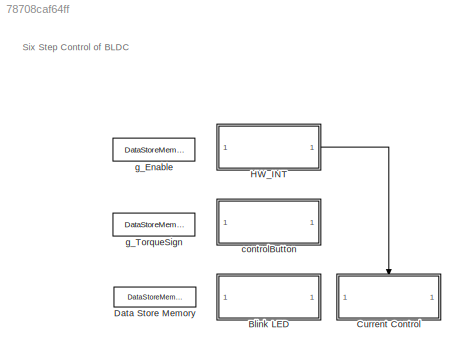
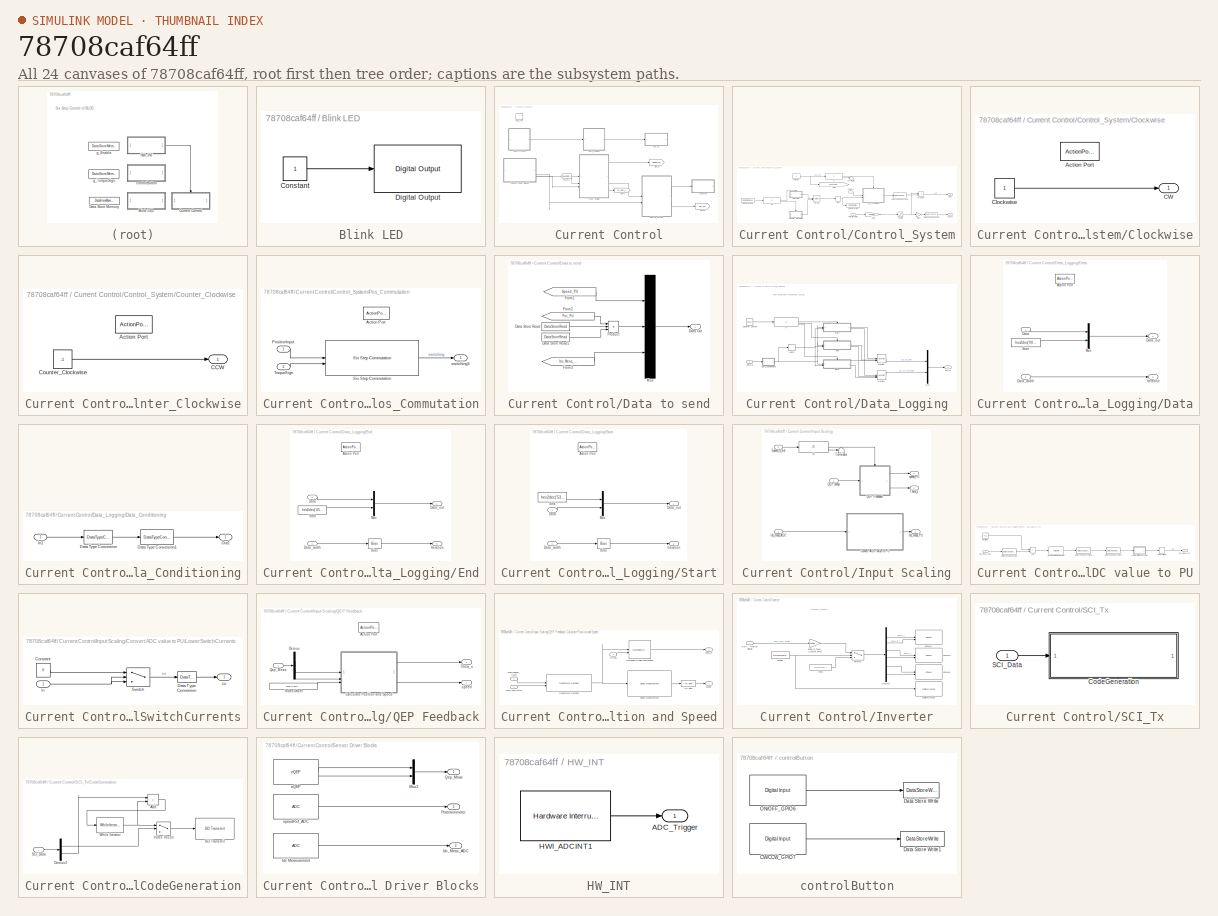
[diagram: thumbnail index - all 24 canvases of the model, root first then tree order]
MODEL slx_78708caf64ff
KIND model
CONFIG AbsTol = auto
CONFIG EnableMultiTasking = on
CONFIG FixedStep = auto
CONFIG InitFcn = mcb_bldc_sixstep_f28069mLaunchPad_data;
CONFIG MaxStep = auto
CONFIG MinStep = auto
CONFIG RelTol = 1e-3
CONFIG SampleTimeConstraint = Unconstrained
CONFIG SolverName = FixedStepDiscrete
CONFIG StartTime = 0.0
CONFIG StopTime = 2
BLOCK [SubSystem] Blink LED
BLOCK [Constant] Blink LED/Constant
  SampleTime = 0.5
BLOCK [Reference] Blink LED/Digital Output  REF=c2806xlib/Digital Output
  SourceBlock = c2806xlib/Digital Output
  SourceType = C2806x GPIO Digital Output
  UserDataPersistent = on
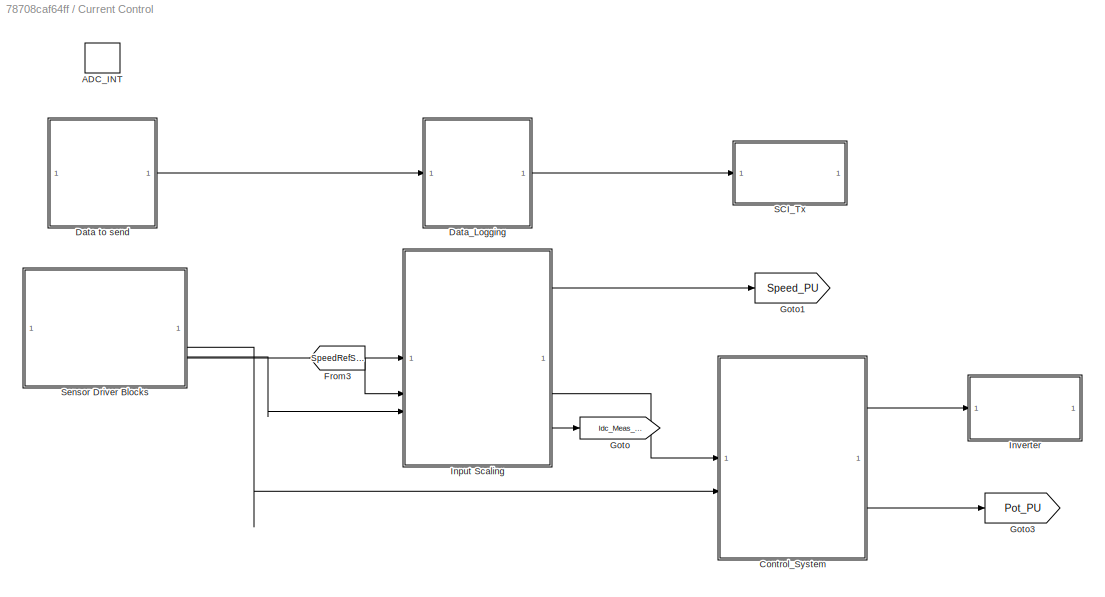
BLOCK [SubSystem] Current Control
  TreatAsAtomicUnit = on
BLOCK [TriggerPort] Current Control/ADC_INT
  StatesWhenEnabling = held
  TriggerType = function-call
  VariantControl = (inherit)
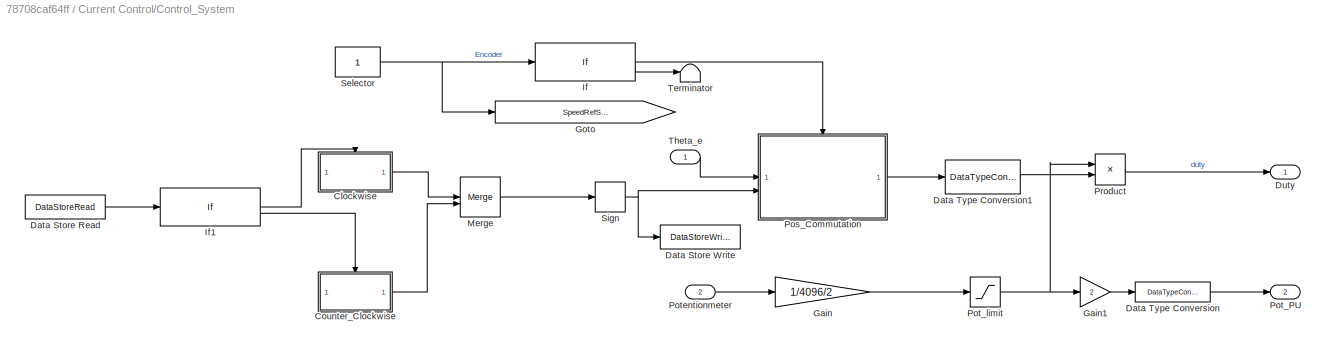
BLOCK [SubSystem] Current Control/Control_System
BLOCK [SubSystem] Current Control/Control_System/Clockwise
  TreatAsAtomicUnit = on
BLOCK [ActionPort] Current Control/Control_System/Clockwise/Action Port
  ActionPortLabel = if(u1 == 0)
BLOCK [Outport] Current Control/Control_System/Clockwise/CW
BLOCK [Constant] Current Control/Control_System/Clockwise/Clockwise
BLOCK [SubSystem] Current Control/Control_System/Counter_Clockwise
  TreatAsAtomicUnit = on
BLOCK [ActionPort] Current Control/Control_System/Counter_Clockwise/Action Port
  ActionPortLabel = elseif(u1 == 1)
BLOCK [Outport] Current Control/Control_System/Counter_Clockwise/CCW
BLOCK [Constant] Current Control/Control_System/Counter_Clockwise/Counter_Clockwise
  Value = -1
BLOCK [DataStoreRead] Current Control/Control_System/Data Store Read
  DataStoreName = readTorqueSign
  IndexOptions = Index vector (dialog)
  Indices = 1
  OutputSizes = 1
BLOCK [DataStoreWrite] Current Control/Control_System/Data Store Write
  DataStoreName = direction
  IndexOptions = Index vector (dialog)
  Indices = 1
  OutputSizes = 1
BLOCK [DataTypeConversion] Current Control/Control_System/Data Type Conversion
  OutDataTypeStr = single
  RndMeth = Floor
  SaturateOnIntegerOverflow = off
BLOCK [DataTypeConversion] Current Control/Control_System/Data Type Conversion1
  OutDataTypeStr = dataType
  RndMeth = Simplest
  SaturateOnIntegerOverflow = off
BLOCK [Outport] Current Control/Control_System/Duty
  VectorParamsAs1DForOutWhenUnconnected = off
BLOCK [Gain] Current Control/Control_System/Gain
  Gain = 1/4096/2
BLOCK [Gain] Current Control/Control_System/Gain1
  Gain = 2
BLOCK [Goto] Current Control/Control_System/Goto
  GotoTag = SpeedRefSelector_encoder
  NameLocation = top
  TagVisibility = global
BLOCK [If] Current Control/Control_System/If
  IfExpression = u1 ==1
BLOCK [If] Current Control/Control_System/If1
  ElseIfExpressions = u1 == 1
  IfExpression = u1 == 0
  ShowElse = off
BLOCK [Merge] Current Control/Control_System/Merge
BLOCK [SubSystem] Current Control/Control_System/Pos_Commutation
BLOCK [ActionPort] Current Control/Control_System/Pos_Commutation/Action Port
  ActionPortLabel = if(u1 ==1)
BLOCK [Inport] Current Control/Control_System/Pos_Commutation/PositionInput
BLOCK [Reference] Current Control/Control_System/Pos_Commutation/Six Step Commutation  REF=mcbcontrolslib/Six Step Commutation
  SourceBlock = mcbcontrolslib/Six Step Commutation
  SourceType = Six-Step Commutation
BLOCK [Inport] Current Control/Control_System/Pos_Commutation/TorqueSign
  Port = 2
BLOCK [Outport] Current Control/Control_System/Pos_Commutation/switching3
BLOCK [Outport] Current Control/Control_System/Pot_PU
  Port = 2
BLOCK [Saturate] Current Control/Control_System/Pot_limit
  LowerLimit = 0
  UpperLimit = 0.9
BLOCK [Inport] Current Control/Control_System/Potentionmeter
  Port = 2
BLOCK [Product] Current Control/Control_System/Product
  OutDataTypeStr = Inherit: Same as first input
  RndMeth = Simplest
BLOCK [Constant] Current Control/Control_System/Selector
  OutDataTypeStr = uint16
  SampleTime = -1
BLOCK [Signum] Current Control/Control_System/Sign
BLOCK [Terminator] Current Control/Control_System/Terminator
BLOCK [Inport] Current Control/Control_System/Theta_e
BLOCK [SubSystem] Current Control/Data to send
BLOCK [Outport] Current Control/Data to send/Data Out
BLOCK [DataStoreRead] Current Control/Data to send/Data Store Read
  DataStoreName = Enable
  IndexOptions = Index vector (dialog)
  Indices = 1
  OutputSizes = 1
BLOCK [DataStoreRead] Current Control/Data to send/Data Store Read1
  DataStoreName = direction
  IndexOptions = Index vector (dialog)
  Indices = 1
  OutputSizes = 1
BLOCK [From] Current Control/Data to send/From1
  GotoTag = Speed_PU
  TagVisibility = global
BLOCK [From] Current Control/Data to send/From2
  GotoTag = Pot_PU
  TagVisibility = global
BLOCK [From] Current Control/Data to send/From3
  GotoTag = Idc_Meas_PU
  TagVisibility = global
BLOCK [Mux] Current Control/Data to send/Mux
  DisplayOption = bar
  Inputs = 3
BLOCK [Product] Current Control/Data to send/Product
  Inputs = 3
  OutDataTypeStr = single
BLOCK [SubSystem] Current Control/Data_Logging
BLOCK [Reference] Current Control/Data_Logging/Counter Limited  REF=simulink/Sources/Counter
Limited
  SourceBlock = simulink/Sources/Counter\nLimited
  SourceType = Counter Limited
BLOCK [SubSystem] Current Control/Data_Logging/Data
  TreatAsAtomicUnit = on
BLOCK [Inport] Current Control/Data_Logging/Data in
BLOCK [ActionPort] Current Control/Data_Logging/Data/Action Port
  ActionPortLabel = else
BLOCK [Inport] Current Control/Data_Logging/Data/Data
BLOCK [Outport] Current Control/Data_Logging/Data/Data_out
  VectorParamsAs1DForOutWhenUnconnected = off
BLOCK [Inport] Current Control/Data_Logging/Data/Data_width
  Port = 2
BLOCK [Outport] Current Control/Data_Logging/Data/Iteration
  Port = 2
  VectorParamsAs1DForOutWhenUnconnected = off
BLOCK [Mux] Current Control/Data_Logging/Data/Mux
  DisplayOption = bar
  Inputs = 2
BLOCK [Constant] Current Control/Data_Logging/Data/Start
  OutDataTypeStr = uint16
  Value = hex2dec('0000')
BLOCK [SubSystem] Current Control/Data_Logging/Data_Conditioning
BLOCK [DataTypeConversion] Current Control/Data_Logging/Data_Conditioning/Data Type Conversion
  OutDataTypeStr = fixdt(1,16,12)
  RndMeth = Simplest
  SaturateOnIntegerOverflow = off
BLOCK [DataTypeConversion] Current Control/Data_Logging/Data_Conditioning/Data Type Conversion1
  ConvertRealWorld = Stored Integer (SI)
  OutDataTypeStr = uint16
  RndMeth = Floor
  SaturateOnIntegerOverflow = off
BLOCK [Inport] Current Control/Data_Logging/Data_Conditioning/In1
BLOCK [Outport] Current Control/Data_Logging/Data_Conditioning/Out1
  VectorParamsAs1DForOutWhenUnconnected = off
BLOCK [SubSystem] Current Control/Data_Logging/End
  TreatAsAtomicUnit = on
BLOCK [ActionPort] Current Control/Data_Logging/End/Action Port
  ActionPortLabel = elseif(u1 == 599)
BLOCK [Bias] Current Control/Data_Logging/End/Bias
  Bias = 1
  SaturateOnIntegerOverflow = off
BLOCK [Inport] Current Control/Data_Logging/End/Data
BLOCK [Outport] Current Control/Data_Logging/End/Data_out
  VectorParamsAs1DForOutWhenUnconnected = off
BLOCK [Inport] Current Control/Data_Logging/End/Data_width
  Port = 2
BLOCK [Outport] Current Control/Data_Logging/End/Iteration
  Port = 2
  VectorParamsAs1DForOutWhenUnconnected = off
BLOCK [Mux] Current Control/Data_Logging/End/Mux
  DisplayOption = bar
  Inputs = 2
BLOCK [Constant] Current Control/Data_Logging/End/Start
  OutDataTypeStr = uint16
  Value = hex2dec('4545')
BLOCK [If] Current Control/Data_Logging/If
  ElseIfExpressions = u1 == 599
  IfExpression = u1 == 0
BLOCK [Merge] Current Control/Data_Logging/Merge
  Inputs = 3
BLOCK [Merge] Current Control/Data_Logging/Merge1
  Inputs = 3
BLOCK [Mux] Current Control/Data_Logging/Mux
  DisplayOption = bar
  Inputs = 2
BLOCK [Outport] Current Control/Data_Logging/SCI_Tx
BLOCK [SubSystem] Current Control/Data_Logging/Start
  TreatAsAtomicUnit = on
BLOCK [ActionPort] Current Control/Data_Logging/Start/Action Port
  ActionPortLabel = if(u1 == 0)
BLOCK [Bias] Current Control/Data_Logging/Start/Bias
  Bias = 1
  SaturateOnIntegerOverflow = off
BLOCK [Inport] Current Control/Data_Logging/Start/Data
BLOCK [Outport] Current Control/Data_Logging/Start/Data_out
  VectorParamsAs1DForOutWhenUnconnected = off
BLOCK [Inport] Current Control/Data_Logging/Start/Data_width
  Port = 2
BLOCK [Constant] Current Control/Data_Logging/Start/End
  OutDataTypeStr = uint16
  Value = hex2dec('5353')
BLOCK [Outport] Current Control/Data_Logging/Start/Iteration
  Port = 2
  VectorParamsAs1DForOutWhenUnconnected = off
BLOCK [Mux] Current Control/Data_Logging/Start/Mux
  DisplayOption = bar
  Inputs = 2
BLOCK [Width] Current Control/Data_Logging/Width
  DataType = uint16
  OutDataTypeMode = All ports same datatype
BLOCK [From] Current Control/From3
  GotoTag = SpeedRefSelector_encoder
  TagVisibility = global
BLOCK [Goto] Current Control/Goto
  GotoTag = Idc_Meas_PU
  TagVisibility = global
BLOCK [Goto] Current Control/Goto1
  GotoTag = Speed_PU
  TagVisibility = global
BLOCK [Goto] Current Control/Goto3
  GotoTag = Pot_PU
  TagVisibility = global
BLOCK [SubSystem] Current Control/Input Scaling
BLOCK [SubSystem] Current Control/Input Scaling/Convert ADC value to PU
BLOCK [Sum] Current Control/Input Scaling/Convert ADC value to PU/Add
  IconShape = rectangular
  Inputs = -+
BLOCK [DataTypeConversion] Current Control/Input Scaling/Convert ADC value to PU/Data Type Conversion
  ConvertRealWorld = Stored Integer (SI)
  OutDataTypeStr = int32
  RndMeth = Floor
  SaturateOnIntegerOverflow = off
BLOCK [DataTypeConversion] Current Control/Input Scaling/Convert ADC value to PU/Data Type Conversion1
  OutDataTypeStr = dataType
  RndMeth = Floor
  SaturateOnIntegerOverflow = off
BLOCK [DataTypeConversion] Current Control/Input Scaling/Convert ADC value to PU/Data Type Conversion3
  ConvertRealWorld = Stored Integer (SI)
  OutDataTypeStr = fixdt(1,32,17)
  RndMeth = Simplest
  SaturateOnIntegerOverflow = off
BLOCK [Constant] Current Control/Input Scaling/Convert ADC value to PU/IdcOffset
  OutDataTypeStr = uint16
  SampleTime = -1
  Value = 3111
BLOCK [Inport] Current Control/Input Scaling/Convert ADC value to PU/Idc_meas_ADC
BLOCK [Outport] Current Control/Input Scaling/Convert ADC value to PU/Idc_meas_PU
BLOCK [SubSystem] Current Control/Input Scaling/Convert ADC value to PU/LowerSwitchCurrents
BLOCK [Constant] Current Control/Input Scaling/Convert ADC value to PU/LowerSwitchCurrents/Constant
  Value = 0
BLOCK [DataTypeConversion] Current Control/Input Scaling/Convert ADC value to PU/LowerSwitchCurrents/Data Type Conversion
  RndMeth = Floor
  SaturateOnIntegerOverflow = off
BLOCK [Switch] Current Control/Input Scaling/Convert ADC value to PU/LowerSwitchCurrents/Switch
  Criteria = u2 > Threshold
  InputSameDT = off
  SaturateOnIntegerOverflow = off
BLOCK [Outport] Current Control/Input Scaling/Convert ADC value to PU/LowerSwitchCurrents/cu
BLOCK [Inport] Current Control/Input Scaling/Convert ADC value to PU/LowerSwitchCurrents/in
BLOCK [ArithShift] Current Control/Input Scaling/Convert ADC value to PU/Q17 per unit conversion
  BitShiftNumber = -6
  InputPortMap = u0
BLOCK [UnaryMinus] Current Control/Input Scaling/Convert ADC value to PU/Unary Minus
BLOCK [Inport] Current Control/Input Scaling/Idc_meas_ADC
  Port = 3
BLOCK [Outport] Current Control/Input Scaling/Idc_meas_PU
  Port = 3
  VectorParamsAs1DForOutWhenUnconnected = off
BLOCK [If] Current Control/Input Scaling/If
  IfExpression = u1 ==1
BLOCK [SubSystem] Current Control/Input Scaling/QEP Feedback
  TreatAsAtomicUnit = on
BLOCK [SubSystem] Current Control/Input Scaling/QEP Feedback/ Calculate Position and Speed
BLOCK [Reference] Current Control/Input Scaling/QEP Feedback/ Calculate Position and Speed/IIR Filter  REF=mcbcontrolslib/IIR Filter
  SourceBlock = mcbcontrolslib/IIR Filter
  SourceType = IIR Filter
BLOCK [Reference] Current Control/Input Scaling/QEP Feedback/ Calculate Position and Speed/Mechanical to Electrical Position  REF=mcbpositiondecoderlib/Mechanical to Electrical Position
  SourceBlock = mcbpositiondecoderlib/Mechanical to Electrical Position
  SourceType = Mechanical to Electrical Position
BLOCK [Inport] Current Control/Input Scaling/QEP Feedback/ Calculate Position and Speed/Offset
  Port = 3
BLOCK [Inport] Current Control/Input Scaling/QEP Feedback/ Calculate Position and Speed/QEP_Index_Latch
  Port = 2
BLOCK [Inport] Current Control/Input Scaling/QEP Feedback/ Calculate Position and Speed/QEP_Position_Count
BLOCK [Reference] Current Control/Input Scaling/QEP Feedback/ Calculate Position and Speed/Quadrature Decoder  REF=mcbpositiondecoderlib/Quadrature Decoder
  SourceBlock = mcbpositiondecoderlib/Quadrature Decoder
  SourceType = Quadrature Decoder
BLOCK [Reference] Current Control/Input Scaling/QEP Feedback/ Calculate Position and Speed/Speed Measurement  REF=mcbpositiondecoderlib/Speed Measurement
  SourceBlock = mcbpositiondecoderlib/Speed Measurement
  SourceType = Speed Measurement
BLOCK [Outport] Current Control/Input Scaling/QEP Feedback/ Calculate Position and Speed/Theta_e
  VectorParamsAs1DForOutWhenUnconnected = off
BLOCK [Outport] Current Control/Input Scaling/QEP Feedback/ Calculate Position and Speed/speed
  Port = 2
  VectorParamsAs1DForOutWhenUnconnected = off
BLOCK [ActionPort] Current Control/Input Scaling/QEP Feedback/Action Port
  ActionPortLabel = if(u1 ==1)
BLOCK [Demux] Current Control/Input Scaling/QEP Feedback/Demux
  Outputs = 2
BLOCK [Constant] Current Control/Input Scaling/QEP Feedback/IndexOffset
  OutDataTypeStr = dataType
  SampleTime = -1
  Value = bldc.PositionOffset
BLOCK [Inport] Current Control/Input Scaling/QEP Feedback/Qep_Meas
BLOCK [Outport] Current Control/Input Scaling/QEP Feedback/Theta_e
  Port = 2
BLOCK [Outport] Current Control/Input Scaling/QEP Feedback/speed
BLOCK [Inport] Current Control/Input Scaling/QEP_Meas
BLOCK [Inport] Current Control/Input Scaling/Speed_fb_Sel
  Port = 2
BLOCK [Terminator] Current Control/Input Scaling/Terminator
BLOCK [Outport] Current Control/Input Scaling/Theta_e
  InitialOutput = 0
  Port = 2
  VectorParamsAs1DForOutWhenUnconnected = off
BLOCK [Outport] Current Control/Input Scaling/speed_PU
  InitialOutput = 0
  VectorParamsAs1DForOutWhenUnconnected = off
BLOCK [SubSystem] Current Control/Inverter
  VariantControl = (codegen)
BLOCK [Demux] Current Control/Inverter/Demux1
  Outputs = 6
BLOCK [Reference] Current Control/Inverter/Digital Output  REF=c2806xlib/Digital Output
  SourceBlock = c2806xlib/Digital Output
  SourceType = C2806x GPIO Digital Output
  UserDataPersistent = on
BLOCK [Inport] Current Control/Inverter/Duty // Inverter Signals
BLOCK [DataStoreRead] Current Control/Inverter/Enable
  DataStoreName = Enable
  IndexOptions = Index vector (dialog)
  Indices = 1
  OutputSizes = 1
BLOCK [Gain] Current Control/Inverter/Scale_to_PWM_Counter_PRD
  Gain = target.PWM_Counter_Period
  OutDataTypeStr = uint16
  RndMeth = Simplest
BLOCK [Switch] Current Control/Inverter/Switch1
  InputSameDT = off
  SaturateOnIntegerOverflow = off
  Threshold = 0.5
BLOCK [Reference] Current Control/Inverter/ePWM4  REF=c2802xlib/ePWM
  SourceBlock = c2802xlib/ePWM
  SourceType = ePWM Type 1-4
BLOCK [Reference] Current Control/Inverter/ePWM5  REF=c2802xlib/ePWM
  SourceBlock = c2802xlib/ePWM
  SourceType = ePWM Type 1-4
BLOCK [Reference] Current Control/Inverter/ePWM6  REF=c2802xlib/ePWM
  SourceBlock = c2802xlib/ePWM
  SourceType = ePWM Type 1-4
BLOCK [Constant] Current Control/Inverter/stop
  OutDataTypeStr = uint16
  Value = [0 0 0 0 0 0]
BLOCK [SubSystem] Current Control/SCI_Tx
  VariantControl = (codegen)
BLOCK [SubSystem] Current Control/SCI_Tx/CodeGeneration
  TreatAsAtomicUnit = on
BLOCK [Sum] Current Control/SCI_Tx/CodeGeneration/Add
  IconShape = rectangular
  Inputs = +-
  OutDataTypeStr = Inherit: Same as first input
BLOCK [Demux] Current Control/SCI_Tx/CodeGeneration/Demux2
  Outputs = 2
BLOCK [MultiPortSwitch] Current Control/SCI_Tx/CodeGeneration/Index Vector
  InputSameDT = off
  Inputs = 1
  SaturateOnIntegerOverflow = off
BLOCK [Reference] Current Control/SCI_Tx/CodeGeneration/SCI Transmit  REF=c280xlib/SCI Transmit
  SourceBlock = c280xlib/SCI Transmit
  SourceType = C28x SCI Transmit
BLOCK [Inport] Current Control/SCI_Tx/CodeGeneration/SCI_Data
BLOCK [WhileIterator] Current Control/SCI_Tx/CodeGeneration/While Iterator
  MaxIters = -1
  OutputDataType = int16
  ShowIterationPort = on
  WhileBlockType = do-while
BLOCK [Inport] Current Control/SCI_Tx/SCI_Data
BLOCK [SubSystem] Current Control/Sensor Driver Blocks
  VariantControl = (codegen)
BLOCK [Reference] Current Control/Sensor Driver Blocks/Idc Measurement  REF=c2802xlib/ADC
  SourceBlock = c2802xlib/ADC
  SourceType = ADC Type 3-5
  UserDataPersistent = on
BLOCK [Outport] Current Control/Sensor Driver Blocks/Idc_Meas_ADC
  Port = 3
BLOCK [Mux] Current Control/Sensor Driver Blocks/Mux2
  DisplayOption = bar
  Inputs = 2
BLOCK [Outport] Current Control/Sensor Driver Blocks/Potentionmeter
  Port = 2
BLOCK [Outport] Current Control/Sensor Driver Blocks/Qep_Meas
BLOCK [Reference] Current Control/Sensor Driver Blocks/eQEP  REF=c280xlib/eQEP
  SourceBlock = c280xlib/eQEP
  SourceType = C28x eQEP
BLOCK [Reference] Current Control/Sensor Driver Blocks/speedRef_ADC  REF=c2802xlib/ADC
  LibrarySourceBlock = c2806xlib/ADC
  SourceBlock = c2802xlib/ADC
  SourceType = ADC Type 3-5
  UserDataPersistent = on
BLOCK [DataStoreMemory] Data Store Memory
  DataStoreName = direction
  ShowAdditionalParam = off
  WriteAfterWriteMsg = warning
BLOCK [SubSystem] HW_INT
  NameLocation = top
BLOCK [Outport] HW_INT/ADC_Trigger
BLOCK [Reference] HW_INT/HWI_ADCINT1  REF=svdschedulerlib/Hardware Interrupt v2
  LibrarySourceBlock = c2000lib/Scheduling/Hardware Interrupt
  SourceBlock = svdschedulerlib/Hardware Interrupt v2
  SourceType = HardwareInterrupt
  UserDataPersistent = on
BLOCK [SubSystem] controlButton
BLOCK [Reference] controlButton/CW//CCW_GPIO7  REF=c2806xlib/Digital Input
  SourceBlock = c2806xlib/Digital Input
  SourceType = C2806x GPIO Digital Input
  UserDataPersistent = on
BLOCK [DataStoreWrite] controlButton/Data Store Write
  DataStoreName = Enable
  IndexOptions = Index vector (dialog)
  Indices = 1
  OutputSizes = 1
BLOCK [DataStoreWrite] controlButton/Data Store Write1
  DataStoreName = readTorqueSign
  IndexOptions = Index vector (dialog)
  Indices = 1
  OutputSizes = 1
BLOCK [Reference] controlButton/ON//OFF_GPIO6  REF=c2806xlib/Digital Input
  SourceBlock = c2806xlib/Digital Input
  SourceType = C2806x GPIO Digital Input
  UserDataPersistent = on
BLOCK [DataStoreMemory] g_Enable
  DataStoreName = Enable
  OutDataTypeStr = boolean
  ShowAdditionalParam = off
BLOCK [DataStoreMemory] g_TorqueSign
  DataStoreName = readTorqueSign
  OutDataTypeStr = boolean
  ShowAdditionalParam = off
ANNOTATION (root): Six Step Control of BLDC
ANNOTATION Current Control/Data_Logging: Fast Serial Data Monitoring (32-bit)
ANNOTATION Current Control/Inverter: System Outputs
LINE Blink LED/Constant:1 -> Blink LED/Digital Output:1
LINE Current Control/Control_System/Clockwise/Clockwise:1 -> Current Control/Control_System/Clockwise/CW:1
LINE Current Control/Control_System/Clockwise:1 -> Current Control/Control_System/Merge:1
LINE Current Control/Control_System/Counter_Clockwise/Counter_Clockwise:1 -> Current Control/Control_System/Counter_Clockwise/CCW:1
LINE Current Control/Control_System/Counter_Clockwise:1 -> Current Control/Control_System/Merge:2
LINE Current Control/Control_System/Data Store Read:1 -> Current Control/Control_System/If1:1
LINE Current Control/Control_System/Data Type Conversion1:1 -> Current Control/Control_System/Product:2
LINE Current Control/Control_System/Data Type Conversion:1 -> Current Control/Control_System/Pot_PU:1
LINE Current Control/Control_System/Gain1:1 -> Current Control/Control_System/Data Type Conversion:1
LINE Current Control/Control_System/Gain:1 -> Current Control/Control_System/Pot_limit:1
LINE Current Control/Control_System/If1:1 -> Current Control/Control_System/Clockwise:ifaction
LINE Current Control/Control_System/If1:2 -> Current Control/Control_System/Counter_Clockwise:ifaction
LINE Current Control/Control_System/If:1 -> Current Control/Control_System/Pos_Commutation:ifaction
LINE Current Control/Control_System/If:2 -> Current Control/Control_System/Terminator:1
LINE Current Control/Control_System/Merge:1 -> Current Control/Control_System/Sign:1
LINE Current Control/Control_System/Pos_Commutation/PositionInput:1 -> Current Control/Control_System/Pos_Commutation/Six Step Commutation:1
LINE Current Control/Control_System/Pos_Commutation/Six Step Commutation:1 -> Current Control/Control_System/Pos_Commutation/switching3:1
LINE Current Control/Control_System/Pos_Commutation/TorqueSign:1 -> Current Control/Control_System/Pos_Commutation/Six Step Commutation:2
LINE Current Control/Control_System/Pos_Commutation:1 -> Current Control/Control_System/Data Type Conversion1:1
NET Current Control/Control_System/Pot_limit:1 -> Current Control/Control_System/Gain1:1, Current Control/Control_System/Product:1
LINE Current Control/Control_System/Potentionmeter:1 -> Current Control/Control_System/Gain:1
LINE Current Control/Control_System/Product:1 -> Current Control/Control_System/Duty:1
NET Current Control/Control_System/Selector:1 -> Current Control/Control_System/Goto:1, Current Control/Control_System/If:1
NET Current Control/Control_System/Sign:1 -> Current Control/Control_System/Data Store Write:1, Current Control/Control_System/Pos_Commutation:2
LINE Current Control/Control_System/Theta_e:1 -> Current Control/Control_System/Pos_Commutation:1
LINE Current Control/Control_System:1 -> Current Control/Inverter:1
LINE Current Control/Control_System:2 -> Current Control/Goto3:1
LINE Current Control/Data to send/Data Store Read1:1 -> Current Control/Data to send/Product:3
LINE Current Control/Data to send/Data Store Read:1 -> Current Control/Data to send/Product:2
LINE Current Control/Data to send/From1:1 -> Current Control/Data to send/Mux:1
LINE Current Control/Data to send/From2:1 -> Current Control/Data to send/Product:1
LINE Current Control/Data to send/From3:1 -> Current Control/Data to send/Mux:3
LINE Current Control/Data to send/Mux:1 -> Current Control/Data to send/Data Out:1
LINE Current Control/Data to send/Product:1 -> Current Control/Data to send/Mux:2
LINE Current Control/Data to send:1 -> Current Control/Data_Logging:1
LINE Current Control/Data_Logging/Counter Limited:1 -> Current Control/Data_Logging/If:1
LINE Current Control/Data_Logging/Data in:1 -> Current Control/Data_Logging/Data_Conditioning:1
LINE Current Control/Data_Logging/Data/Data:1 -> Current Control/Data_Logging/Data/Mux:1
LINE Current Control/Data_Logging/Data/Data_width:1 -> Current Control/Data_Logging/Data/Iteration:1
LINE Current Control/Data_Logging/Data/Mux:1 -> Current Control/Data_Logging/Data/Data_out:1
LINE Current Control/Data_Logging/Data/Start:1 -> Current Control/Data_Logging/Data/Mux:2
LINE Current Control/Data_Logging/Data:1 -> Current Control/Data_Logging/Merge:3
LINE Current Control/Data_Logging/Data:2 -> Current Control/Data_Logging/Merge1:3
LINE Current Control/Data_Logging/Data_Conditioning/Data Type Conversion1:1 -> Current Control/Data_Logging/Data_Conditioning/Out1:1
LINE Current Control/Data_Logging/Data_Conditioning/Data Type Conversion:1 -> Current Control/Data_Logging/Data_Conditioning/Data Type Conversion1:1
LINE Current Control/Data_Logging/Data_Conditioning/In1:1 -> Current Control/Data_Logging/Data_Conditioning/Data Type Conversion:1
NET Current Control/Data_Logging/Data_Conditioning:1 -> Current Control/Data_Logging/Data:1, Current Control/Data_Logging/End:1, Current Control/Data_Logging/Start:1, Current Control/Data_Logging/Width:1
LINE Current Control/Data_Logging/End/Bias:1 -> Current Control/Data_Logging/End/Iteration:1
LINE Current Control/Data_Logging/End/Data:1 -> Current Control/Data_Logging/End/Mux:1
LINE Current Control/Data_Logging/End/Data_width:1 -> Current Control/Data_Logging/End/Bias:1
LINE Current Control/Data_Logging/End/Mux:1 -> Current Control/Data_Logging/End/Data_out:1
LINE Current Control/Data_Logging/End/Start:1 -> Current Control/Data_Logging/End/Mux:2
LINE Current Control/Data_Logging/End:1 -> Current Control/Data_Logging/Merge:2
LINE Current Control/Data_Logging/End:2 -> Current Control/Data_Logging/Merge1:2
LINE Current Control/Data_Logging/If:1 -> Current Control/Data_Logging/Start:ifaction
LINE Current Control/Data_Logging/If:2 -> Current Control/Data_Logging/End:ifaction
LINE Current Control/Data_Logging/If:3 -> Current Control/Data_Logging/Data:ifaction
LINE Current Control/Data_Logging/Merge1:1 -> Current Control/Data_Logging/Mux:2
LINE Current Control/Data_Logging/Merge:1 -> Current Control/Data_Logging/Mux:1
LINE Current Control/Data_Logging/Mux:1 -> Current Control/Data_Logging/SCI_Tx:1
LINE Current Control/Data_Logging/Start/Bias:1 -> Current Control/Data_Logging/Start/Iteration:1
LINE Current Control/Data_Logging/Start/Data:1 -> Current Control/Data_Logging/Start/Mux:2
LINE Current Control/Data_Logging/Start/Data_width:1 -> Current Control/Data_Logging/Start/Bias:1
LINE Current Control/Data_Logging/Start/End:1 -> Current Control/Data_Logging/Start/Mux:1
LINE Current Control/Data_Logging/Start/Mux:1 -> Current Control/Data_Logging/Start/Data_out:1
LINE Current Control/Data_Logging/Start:1 -> Current Control/Data_Logging/Merge:1
LINE Current Control/Data_Logging/Start:2 -> Current Control/Data_Logging/Merge1:1
NET Current Control/Data_Logging/Width:1 -> Current Control/Data_Logging/Data:2, Current Control/Data_Logging/End:2, Current Control/Data_Logging/Start:2
LINE Current Control/Data_Logging:1 -> Current Control/SCI_Tx:1
LINE Current Control/From3:1 -> Current Control/Input Scaling:2
LINE Current Control/Input Scaling/Convert ADC value to PU/Add:1 -> Current Control/Input Scaling/Convert ADC value to PU/Q17 per unit conversion:1
LINE Current Control/Input Scaling/Convert ADC value to PU/Data Type Conversion1:1 -> Current Control/Input Scaling/Convert ADC value to PU/LowerSwitchCurrents:1
LINE Current Control/Input Scaling/Convert ADC value to PU/Data Type Conversion3:1 -> Current Control/Input Scaling/Convert ADC value to PU/Data Type Conversion1:1
LINE Current Control/Input Scaling/Convert ADC value to PU/Data Type Conversion:1 -> Current Control/Input Scaling/Convert ADC value to PU/Add:2
LINE Current Control/Input Scaling/Convert ADC value to PU/IdcOffset:1 -> Current Control/Input Scaling/Convert ADC value to PU/Add:1
LINE Current Control/Input Scaling/Convert ADC value to PU/Idc_meas_ADC:1 -> Current Control/Input Scaling/Convert ADC value to PU/Data Type Conversion:1
LINE Current Control/Input Scaling/Convert ADC value to PU/LowerSwitchCurrents/Constant:1 -> Current Control/Input Scaling/Convert ADC value to PU/LowerSwitchCurrents/Switch:1
LINE Current Control/Input Scaling/Convert ADC value to PU/LowerSwitchCurrents/Data Type Conversion:1 -> Current Control/Input Scaling/Convert ADC value to PU/LowerSwitchCurrents/cu:1
LINE Current Control/Input Scaling/Convert ADC value to PU/LowerSwitchCurrents/Switch:1 -> Current Control/Input Scaling/Convert ADC value to PU/LowerSwitchCurrents/Data Type Conversion:1
NET Current Control/Input Scaling/Convert ADC value to PU/LowerSwitchCurrents/in:1 -> Current Control/Input Scaling/Convert ADC value to PU/LowerSwitchCurrents/Switch:2, Current Control/Input Scaling/Convert ADC value to PU/LowerSwitchCurrents/Switch:3
LINE Current Control/Input Scaling/Convert ADC value to PU/LowerSwitchCurrents:1 -> Current Control/Input Scaling/Convert ADC value to PU/Unary Minus:1
LINE Current Control/Input Scaling/Convert ADC value to PU/Q17 per unit conversion:1 -> Current Control/Input Scaling/Convert ADC value to PU/Data Type Conversion3:1
LINE Current Control/Input Scaling/Convert ADC value to PU/Unary Minus:1 -> Current Control/Input Scaling/Convert ADC value to PU/Idc_meas_PU:1
LINE Current Control/Input Scaling/Convert ADC value to PU:1 -> Current Control/Input Scaling/Idc_meas_PU:1
LINE Current Control/Input Scaling/Idc_meas_ADC:1 -> Current Control/Input Scaling/Convert ADC value to PU:1
LINE Current Control/Input Scaling/If:1 -> Current Control/Input Scaling/QEP Feedback:ifaction
LINE Current Control/Input Scaling/If:2 -> Current Control/Input Scaling/Terminator:1
LINE Current Control/Input Scaling/QEP Feedback/ Calculate Position and Speed/IIR Filter:1 -> Current Control/Input Scaling/QEP Feedback/ Calculate Position and Speed/speed:1
LINE Current Control/Input Scaling/QEP Feedback/ Calculate Position and Speed/Mechanical to Electrical Position:1 -> Current Control/Input Scaling/QEP Feedback/ Calculate Position and Speed/Theta_e:1
LINE Current Control/Input Scaling/QEP Feedback/ Calculate Position and Speed/Offset:1 -> Current Control/Input Scaling/QEP Feedback/ Calculate Position and Speed/Mechanical to Electrical Position:2
LINE Current Control/Input Scaling/QEP Feedback/ Calculate Position and Speed/QEP_Index_Latch:1 -> Current Control/Input Scaling/QEP Feedback/ Calculate Position and Speed/Quadrature Decoder:2
LINE Current Control/Input Scaling/QEP Feedback/ Calculate Position and Speed/QEP_Position_Count:1 -> Current Control/Input Scaling/QEP Feedback/ Calculate Position and Speed/Quadrature Decoder:1
NET Current Control/Input Scaling/QEP Feedback/ Calculate Position and Speed/Quadrature Decoder:1 -> Current Control/Input Scaling/QEP Feedback/ Calculate Position and Speed/Mechanical to Electrical Position:1, Current Control/Input Scaling/QEP Feedback/ Calculate Position and Speed/Speed Measurement:1
LINE Current Control/Input Scaling/QEP Feedback/ Calculate Position and Speed/Speed Measurement:1 -> Current Control/Input Scaling/QEP Feedback/ Calculate Position and Speed/IIR Filter:1
LINE Current Control/Input Scaling/QEP Feedback/ Calculate Position and Speed:1 -> Current Control/Input Scaling/QEP Feedback/Theta_e:1
LINE Current Control/Input Scaling/QEP Feedback/ Calculate Position and Speed:2 -> Current Control/Input Scaling/QEP Feedback/speed:1
LINE Current Control/Input Scaling/QEP Feedback/Demux:1 -> Current Control/Input Scaling/QEP Feedback/ Calculate Position and Speed:1
LINE Current Control/Input Scaling/QEP Feedback/Demux:2 -> Current Control/Input Scaling/QEP Feedback/ Calculate Position and Speed:2
LINE Current Control/Input Scaling/QEP Feedback/IndexOffset:1 -> Current Control/Input Scaling/QEP Feedback/ Calculate Position and Speed:3
LINE Current Control/Input Scaling/QEP Feedback/Qep_Meas:1 -> Current Control/Input Scaling/QEP Feedback/Demux:1
LINE Current Control/Input Scaling/QEP Feedback:1 -> Current Control/Input Scaling/speed_PU:1
LINE Current Control/Input Scaling/QEP Feedback:2 -> Current Control/Input Scaling/Theta_e:1
LINE Current Control/Input Scaling/QEP_Meas:1 -> Current Control/Input Scaling/QEP Feedback:1
LINE Current Control/Input Scaling/Speed_fb_Sel:1 -> Current Control/Input Scaling/If:1
LINE Current Control/Input Scaling:1 -> Current Control/Goto1:1
LINE Current Control/Input Scaling:2 -> Current Control/Control_System:1
LINE Current Control/Input Scaling:3 -> Current Control/Goto:1
LINE Current Control/Inverter/Demux1:1 -> Current Control/Inverter/ePWM4:1
LINE Current Control/Inverter/Demux1:2 -> Current Control/Inverter/ePWM4:2
LINE Current Control/Inverter/Demux1:3 -> Current Control/Inverter/ePWM5:1
LINE Current Control/Inverter/Demux1:4 -> Current Control/Inverter/ePWM5:2
LINE Current Control/Inverter/Demux1:5 -> Current Control/Inverter/ePWM6:1
LINE Current Control/Inverter/Demux1:6 -> Current Control/Inverter/ePWM6:2
LINE Current Control/Inverter/Duty // Inverter Signals:1 -> Current Control/Inverter/Scale_to_PWM_Counter_PRD:1
NET Current Control/Inverter/Enable:1 -> Current Control/Inverter/Digital Output:1, Current Control/Inverter/Switch1:2
LINE Current Control/Inverter/Scale_to_PWM_Counter_PRD:1 -> Current Control/Inverter/Switch1:1
LINE Current Control/Inverter/Switch1:1 -> Current Control/Inverter/Demux1:1
LINE Current Control/Inverter/stop:1 -> Current Control/Inverter/Switch1:3
LINE Current Control/SCI_Tx/CodeGeneration/Add:1 -> Current Control/SCI_Tx/CodeGeneration/While Iterator:1
LINE Current Control/SCI_Tx/CodeGeneration/Demux2:1 -> Current Control/SCI_Tx/CodeGeneration/Index Vector:2
LINE Current Control/SCI_Tx/CodeGeneration/Demux2:2 -> Current Control/SCI_Tx/CodeGeneration/Add:1
LINE Current Control/SCI_Tx/CodeGeneration/Index Vector:1 -> Current Control/SCI_Tx/CodeGeneration/SCI Transmit:1
LINE Current Control/SCI_Tx/CodeGeneration/SCI_Data:1 -> Current Control/SCI_Tx/CodeGeneration/Demux2:1
NET Current Control/SCI_Tx/CodeGeneration/While Iterator:1 -> Current Control/SCI_Tx/CodeGeneration/Add:2, Current Control/SCI_Tx/CodeGeneration/Index Vector:1
LINE Current Control/SCI_Tx/SCI_Data:1 -> Current Control/SCI_Tx/CodeGeneration:1
LINE Current Control/Sensor Driver Blocks/Idc Measurement:1 -> Current Control/Sensor Driver Blocks/Idc_Meas_ADC:1
LINE Current Control/Sensor Driver Blocks/Mux2:1 -> Current Control/Sensor Driver Blocks/Qep_Meas:1
LINE Current Control/Sensor Driver Blocks/eQEP:1 -> Current Control/Sensor Driver Blocks/Mux2:1
LINE Current Control/Sensor Driver Blocks/eQEP:2 -> Current Control/Sensor Driver Blocks/Mux2:2
LINE Current Control/Sensor Driver Blocks/speedRef_ADC:1 -> Current Control/Sensor Driver Blocks/Potentionmeter:1
LINE Current Control/Sensor Driver Blocks:1 -> Current Control/Input Scaling:1
LINE Current Control/Sensor Driver Blocks:2 -> Current Control/Control_System:2
LINE Current Control/Sensor Driver Blocks:3 -> Current Control/Input Scaling:3
LINE HW_INT/HWI_ADCINT1:1 -> HW_INT/ADC_Trigger:1
LINE HW_INT:1 -> Current Control:trigger
LINE controlButton/CW//CCW_GPIO7:1 -> controlButton/Data Store Write1:1
LINE controlButton/ON//OFF_GPIO6:1 -> controlButton/Data Store Write:1
note: NET lines group one-source signal fan-out (src -> all destinations, sorted); 1:1 wires keep LINE
